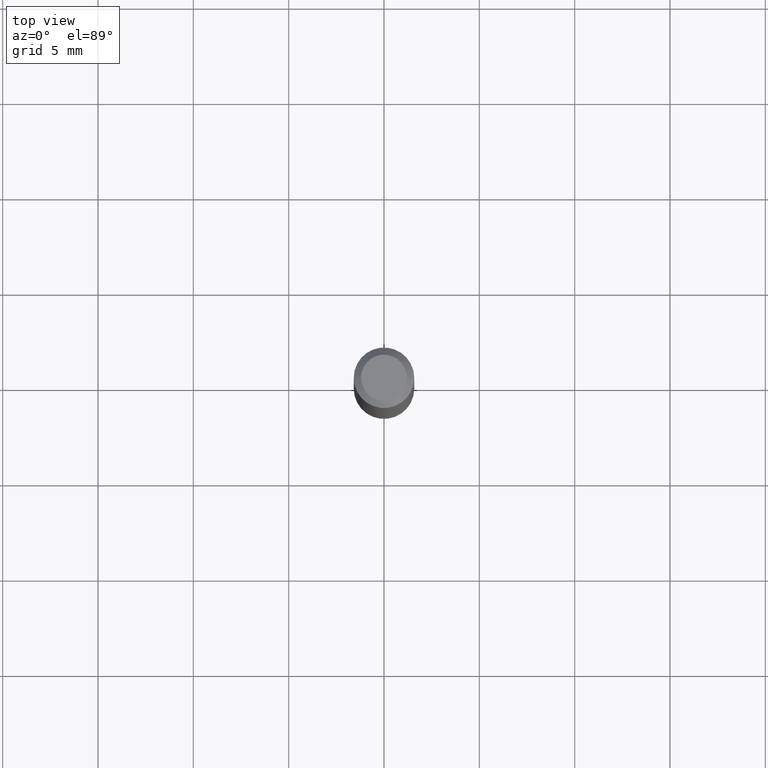
[diagram: clean part render]
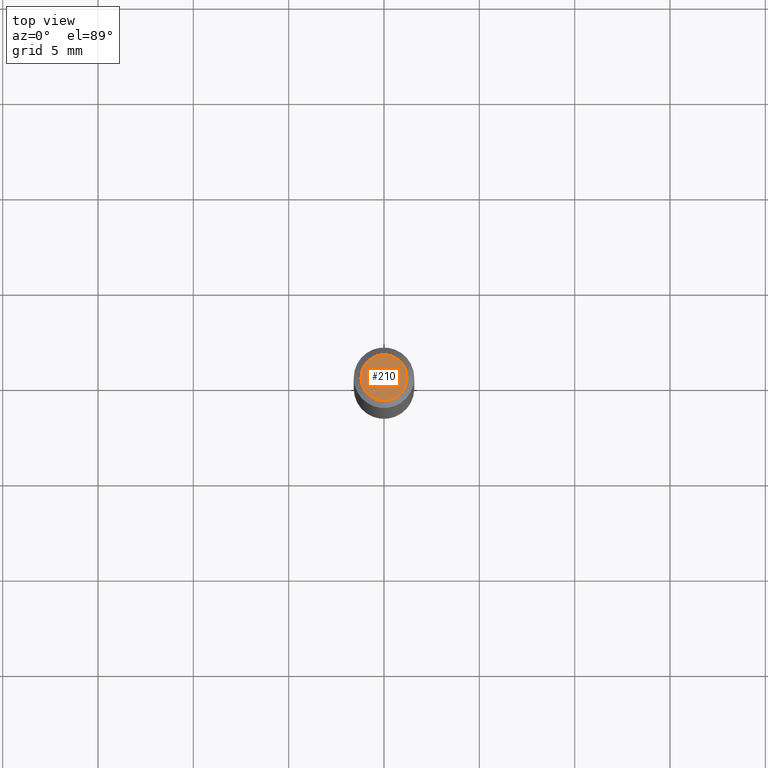
[diagram: same view with one face highlighted and labeled with its STEP entity id]
A machine part, top view. The second image highlights one B-rep face of the part: STEP entity #210.
In plain terms, the highlighted planar face has unit normal (0, -0, -1).
Its self-contained STEP definition (entity closure, byte-faithful):
#16 = AXIS2_PLACEMENT_3D ( 'NONE', #45, #78, #269 ) ;
#18 = DIRECTION ( 'NONE',  ( -2.445468806185136597E-29, 3.491481338843145583E-15, 1.000000000000000000 ) ) ;
#45 = CARTESIAN_POINT ( 'NONE',  ( 3.316907271900976096E-16, 0.04749999999999999362, -2.653275547260257586E-16 ) ) ;
#63 = DIRECTION ( 'NONE',  ( 1.000000000000000000, -6.982962677686267499E-15, 4.852736867747366768E-29 ) ) ;
#78 = DIRECTION ( 'NONE',  ( 2.438088387897960049E-29, -3.491481338843145188E-15, -1.000000000000000000 ) ) ;
#80 = VERTEX_POINT ( 'NONE', #442 ) ;
#102 = ORIENTED_EDGE ( 'NONE', *, *, #343, .T. ) ;
#124 = FACE_OUTER_BOUND ( 'NONE', #217, .T. ) ;
#131 = EDGE_CURVE ( 'NONE', #390, #80, #197, .T. ) ;
#197 = CIRCLE ( 'NONE', #292, 0.04749999999999999362 ) ;
#210 = ADVANCED_FACE ( 'NONE', ( #124 ), #265, .F. ) ;
#217 = EDGE_LOOP ( 'NONE', ( #417, #102 ) ) ;
#221 = AXIS2_PLACEMENT_3D ( 'NONE', #342, #18, #391 ) ;
#265 = PLANE ( 'NONE',  #16 ) ;
#269 = DIRECTION ( 'NONE',  ( -1.000000000000000000, 6.982962677686265922E-15, -4.876176775795935793E-29 ) ) ;
#287 = CARTESIAN_POINT ( 'NONE',  ( -0.04749999999999999362, 3.578768372314206562E-16, -1.989643822619551895E-16 ) ) ;
#292 = AXIS2_PLACEMENT_3D ( 'NONE', #387, #397, #63 ) ;
#342 = CARTESIAN_POINT ( 'NONE',  ( 4.865611903635008365E-45, -6.946804277620623666E-31, -1.989643822619527736E-16 ) ) ;
#343 = EDGE_CURVE ( 'NONE', #80, #390, #450, .T. ) ;
#387 = CARTESIAN_POINT ( 'NONE',  ( 4.865611903635008365E-45, -6.946804277620623666E-31, -1.989643822619527736E-16 ) ) ;
#390 = VERTEX_POINT ( 'NONE', #287 ) ;
#391 = DIRECTION ( 'NONE',  ( 1.000000000000000000, -6.982962677686267499E-15, 4.852736867747366768E-29 ) ) ;
#397 = DIRECTION ( 'NONE',  ( -2.445468806185136597E-29, 3.491481338843145583E-15, 1.000000000000000000 ) ) ;
#417 = ORIENTED_EDGE ( 'NONE', *, *, #131, .T. ) ;
#442 = CARTESIAN_POINT ( 'NONE',  ( 0.04749999999999999362, -4.035134999187581581E-16, -1.989643822619502098E-16 ) ) ;
#450 = CIRCLE ( 'NONE', #221, 0.04749999999999999362 ) ;